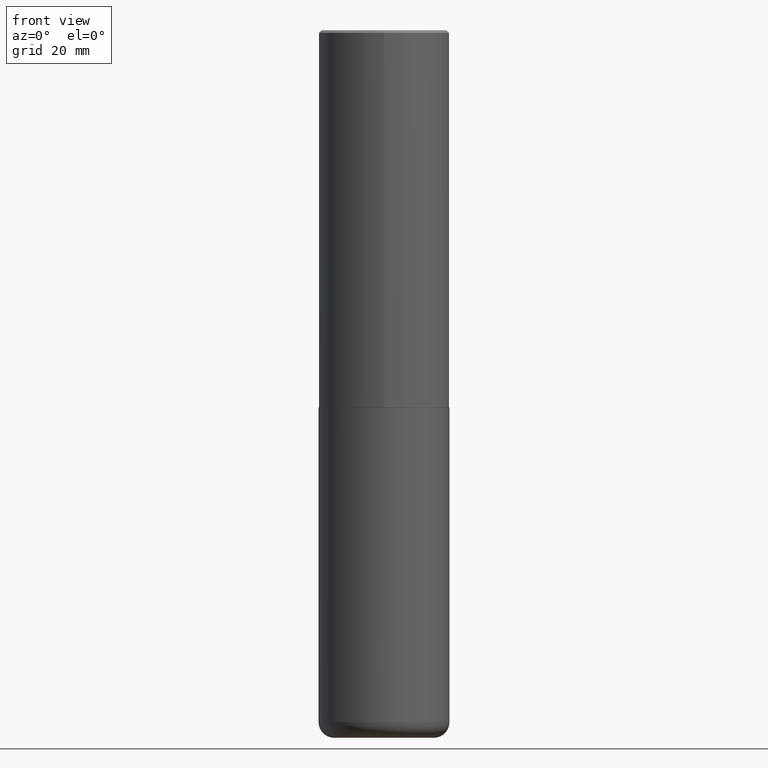
[diagram: clean part render]
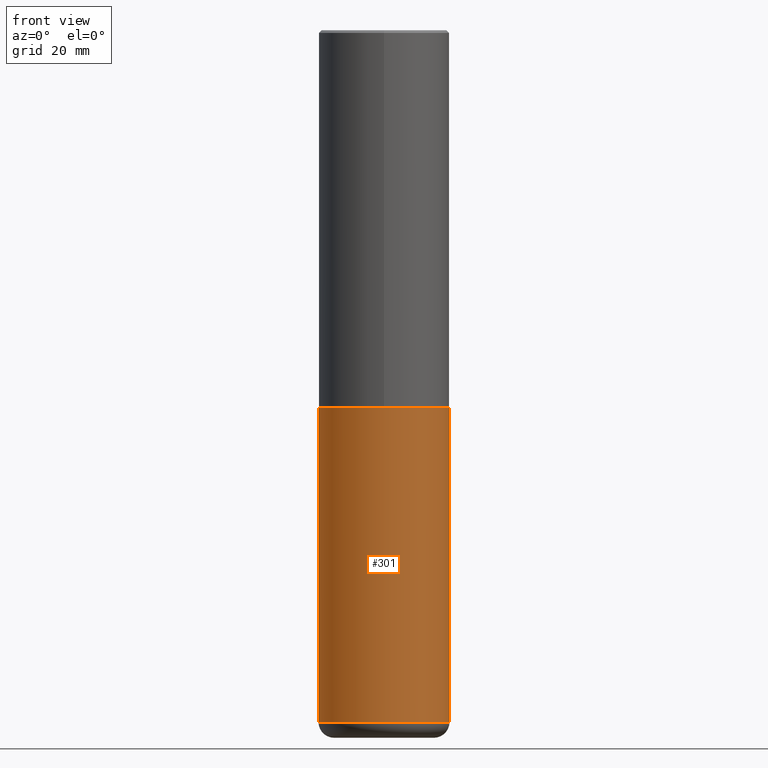
[diagram: same view with one face highlighted and labeled with its STEP entity id]
A machine part, front view. The second image highlights one B-rep face of the part: STEP entity #301.
In plain terms, the highlighted cylindrical surface (partial cylindrical patch) has radius 12.5006 mm, axis along (-0, 0, 1).
Its self-contained STEP definition (entity closure, byte-faithful):
#7 = VERTEX_POINT ( 'NONE', #270 ) ;
#13 = DIRECTION ( 'NONE',  ( -2.445468806185136597E-29, 3.491481338843145583E-15, 1.000000000000000000 ) ) ;
#18 = DIRECTION ( 'NONE',  ( -2.445468806185136597E-29, 3.491481338843145583E-15, 1.000000000000000000 ) ) ;
#29 = EDGE_CURVE ( 'NONE', #7, #127, #368, .T. ) ;
#36 = CARTESIAN_POINT ( 'NONE',  ( 0.4921499999999999764, -3.436665081823295777E-15, 2.399810400207969603E-29 ) ) ;
#39 = CARTESIAN_POINT ( 'NONE',  ( 0.4921499999999999764, -1.333396723304196175E-14, -2.834700000000000220 ) ) ;
#40 = VERTEX_POINT ( 'NONE', #39 ) ;
#55 = CIRCLE ( 'NONE', #340, 0.4921499999999999764 ) ;
#93 = VECTOR ( 'NONE', #164, 39.37007874015748143 ) ;
#96 = VERTEX_POINT ( 'NONE', #413 ) ;
#98 = EDGE_LOOP ( 'NONE', ( #201, #318, #367, #356 ) ) ;
#127 = VERTEX_POINT ( 'NONE', #141 ) ;
#129 = LINE ( 'NONE', #36, #93 ) ;
#141 = CARTESIAN_POINT ( 'NONE',  ( 0.4921499999999999764, -2.158154445165724138E-14, -5.196900000000000297 ) ) ;
#142 = VECTOR ( 'NONE', #277, 39.37007874015748143 ) ;
#164 = DIRECTION ( 'NONE',  ( -2.445468806185136877E-29, 3.491481338843145188E-15, 1.000000000000000000 ) ) ;
#168 = EDGE_CURVE ( 'NONE', #96, #40, #55, .T. ) ;
#178 = AXIS2_PLACEMENT_3D ( 'NONE', #233, #13, #191 ) ;
#191 = DIRECTION ( 'NONE',  ( 1.000000000000000000, -6.982962677686265922E-15, 0.000000000000000000 ) ) ;
#201 = ORIENTED_EDGE ( 'NONE', *, *, #406, .F. ) ;
#203 = FACE_OUTER_BOUND ( 'NONE', #98, .T. ) ;
#211 = CARTESIAN_POINT ( 'NONE',  ( -0.4921499999999999764, 3.496936074043332897E-15, -2.420853904668951509E-29 ) ) ;
#222 = DIRECTION ( 'NONE',  ( -2.445468806185136597E-29, 3.491481338843145583E-15, 1.000000000000000000 ) ) ;
#233 = CARTESIAN_POINT ( 'NONE',  ( 1.270885683886353718E-28, -1.814487936983394718E-14, -5.196900000000000297 ) ) ;
#243 = DIRECTION ( 'NONE',  ( 1.000000000000000000, -6.982962677686265922E-15, 4.876176775795935793E-29 ) ) ;
#270 = CARTESIAN_POINT ( 'NONE',  ( -0.4921499999999999764, -1.464794329579061349E-14, -5.196900000000000297 ) ) ;
#277 = DIRECTION ( 'NONE',  ( -2.445468806185136877E-29, 3.491481338843145188E-15, 1.000000000000000000 ) ) ;
#282 = EDGE_CURVE ( 'NONE', #127, #40, #129, .T. ) ;
#301 = ADVANCED_FACE ( 'NONE', ( #203 ), #308, .T. ) ;
#308 = CYLINDRICAL_SURFACE ( 'NONE', #411, 0.4921499999999999764 ) ;
#318 = ORIENTED_EDGE ( 'NONE', *, *, #29, .T. ) ;
#338 = LINE ( 'NONE', #211, #142 ) ;
#340 = AXIS2_PLACEMENT_3D ( 'NONE', #355, #222, #394 ) ;
#355 = CARTESIAN_POINT ( 'NONE',  ( 6.932170424893007423E-29, -9.897302151218665974E-15, -2.834700000000000220 ) ) ;
#356 = ORIENTED_EDGE ( 'NONE', *, *, #168, .F. ) ;
#367 = ORIENTED_EDGE ( 'NONE', *, *, #282, .T. ) ;
#368 = CIRCLE ( 'NONE', #178, 0.4921499999999999764 ) ;
#394 = DIRECTION ( 'NONE',  ( 1.000000000000000000, -6.982962677686265922E-15, 0.000000000000000000 ) ) ;
#406 = EDGE_CURVE ( 'NONE', #7, #96, #338, .T. ) ;
#409 = CARTESIAN_POINT ( 'NONE',  ( 0.000000000000000000, 0.000000000000000000, 0.000000000000000000 ) ) ;
#411 = AXIS2_PLACEMENT_3D ( 'NONE', #409, #18, #243 ) ;
#413 = CARTESIAN_POINT ( 'NONE',  ( -0.4921499999999999764, -1.052415468648297289E-14, -2.834700000000000220 ) ) ;